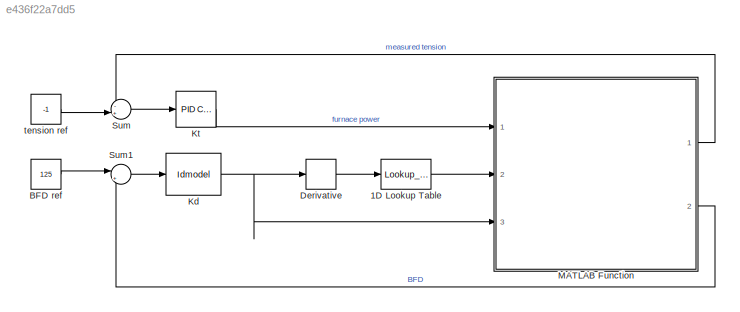
MODEL slx_e436f22a7dd5
KIND model
CONFIG AbsTol = auto
CONFIG EnableMultiTasking = off
CONFIG FixedStep = auto
CONFIG MaxStep = auto
CONFIG MinStep = auto
CONFIG RelTol = 1e-3
CONFIG SampleTimeConstraint = Unconstrained
CONFIG SolverName = VariableStepAuto
CONFIG StartTime = 0
CONFIG StopTime = 10.0
WORKSPACE source: mxarray member
WORKSPACE T_ref = 1
BLOCK [Lookup_n-D] 1D Lookup Table
  BreakpointsForDimension1 = [0,0.01,0.2,0.3,0.5,0.8,1,1.5,2,3,4]
  InputPortMap = u0
  InternalRulePriority = Speed
  NumberOfTableDimensions = 1
  Ports = [1, 1]
  RndMeth = Simplest
  Table = [2.5 2 1 0.5 -1 -2 -3 -4 -8 -10 -10]
BLOCK [Constant] BFD ref
  Value = 125
BLOCK [Derivative] Derivative
BLOCK [Reference] Kd  REF=slident/Models/Idmodel  (lib defined in mdl_f7d4911ca73a)
  Ports = [1, 1]
  SourceBlock = slident/Models/Idmodel
  SourceProductBaseCode = ID
  SourceType = Idmodel Block
BLOCK [Reference] Kt  REF=slpidlib/PID Controller
  Ports = [1, 1]
  SourceBlock = slpidlib/PID Controller
  SourceProductBaseCode = SL
  SourceType = PID 1dof
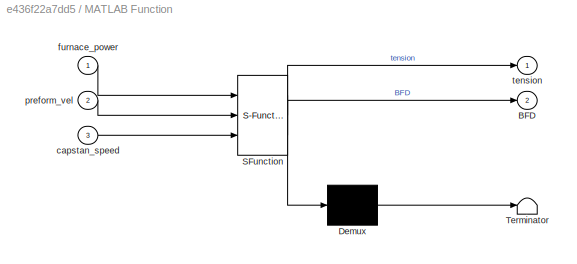
BLOCK [SubSystem] MATLAB Function
  ErrorFcn = Stateflow.Translate.translate
  PermitHierarchicalResolution = ExplicitOnly
  Ports = [3, 2]
  RequestExecContextInheritance = off
  SFBlockType = MATLAB Function
  TreatAsAtomicUnit = on
BLOCK [Demux] MATLAB Function/ Demux 
  Outputs = 1
  Ports = [1, 1]
BLOCK [S-Function] MATLAB Function/ SFunction 
  EnableBusSupport = on
  FunctionName = sf_sfun
  PortCounts = [3 3]
  Ports = [3, 3]
  SFcnIsStateOwnerBlock = off
  SFunctionDeploymentMode = off
  Tag = Stateflow S-Function 2
BLOCK [Terminator] MATLAB Function/ Terminator 
BLOCK [Outport] MATLAB Function/BFD
  Port = 2
BLOCK [Inport] MATLAB Function/capstan_speed
  Port = 3
BLOCK [Inport] MATLAB Function/furnace_power
BLOCK [Inport] MATLAB Function/preform_vel
  Port = 2
BLOCK [Outport] MATLAB Function/tension
BLOCK [Sum] Sum
  Inputs = -+|
  Ports = [2, 1]
BLOCK [Sum] Sum1
  Inputs = |+-
  Ports = [2, 1]
BLOCK [Constant] tension ref
  Value = -1
LINE 1D Lookup Table:1 -> MATLAB Function:2
LINE BFD ref:1 -> Sum1:1
LINE Derivative:1 -> 1D Lookup Table:1
NET Kd:1 -> Derivative:1, MATLAB Function:3
LINE Kt:1 -> MATLAB Function:1
LINE MATLAB Function:1 -> Sum:1
LINE MATLAB Function:2 -> Sum1:2
LINE Sum1:1 -> Kd:1
LINE Sum:1 -> Kt:1
LINE tension ref:1 -> Sum:2
note: NET lines group one-source signal fan-out (src -> all destinations, sorted); 1:1 wires keep LINE
CHART MATLAB Function states=1 transitions=1
  STATE_LABEL 'eML_blk_kernel()'
  STATE_LABEL 'SCRIPT:\nfunction [tension, BFD] = plant(furnace_power, preform_vel, capstan_speed)\npersistent model\nif isempty(model)\n    model = coder.loadDeepLearningNetwork("<userpath>\\Dropbox (MIT)<path>", "deep_lstm");\nend\n[model, out] = model.predictAndUpdateState([furnace_power, capstan_speed, preform_vel].\');\nBFD = out(1);\ntension = out(2);'
CHART  states=0 transitions=0
note: 1 file-system path scrubbed to <path> (not preserved elsewhere — flat text is the only slx artifact)
